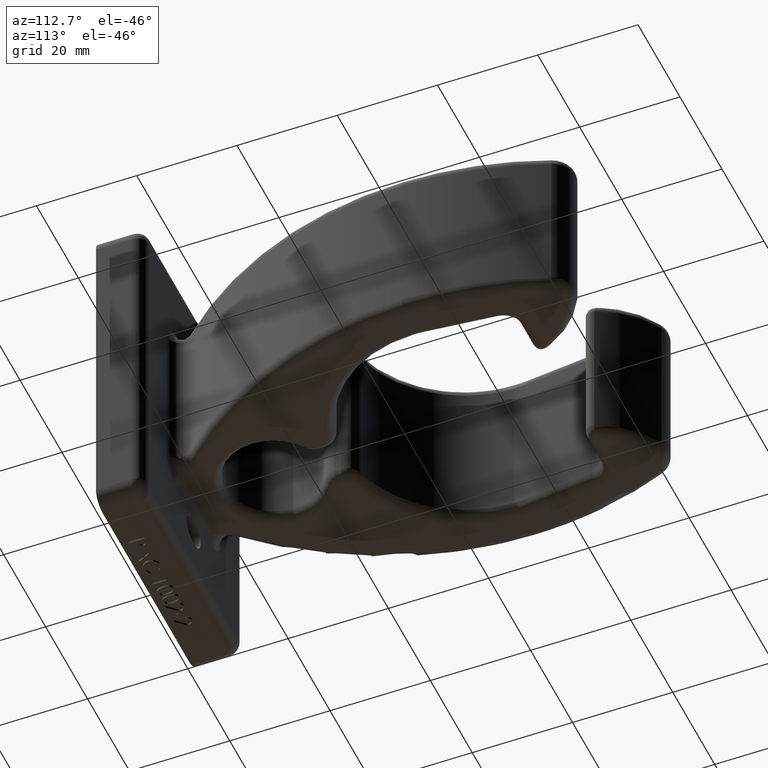
[diagram: clean part render]
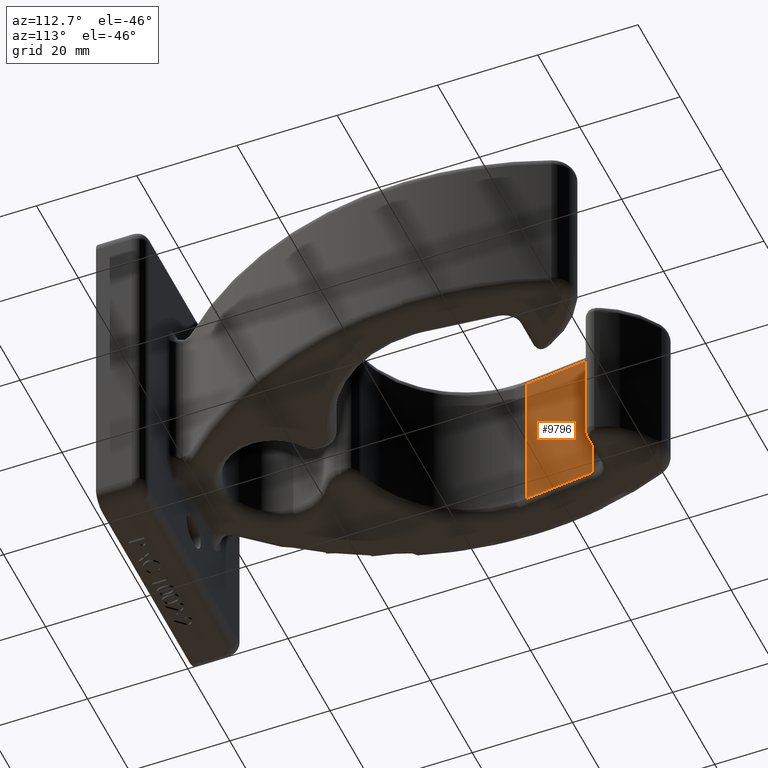
[diagram: same view with one face highlighted and labeled with its STEP entity id]
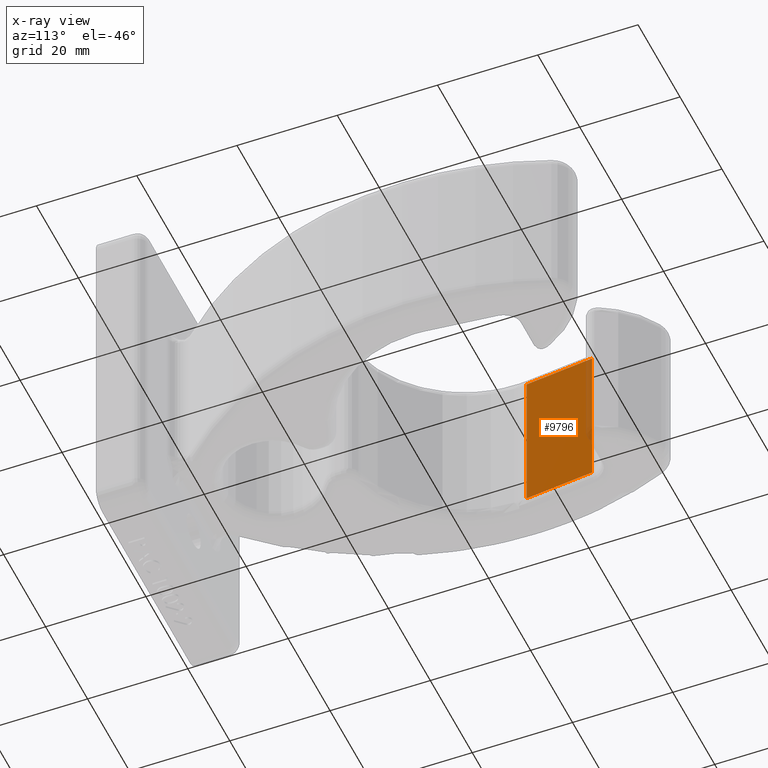
[diagram: x-ray of the same camera — body ghosted, the highlighted face saturated]
A machine part, auxiliary view. The second image highlights one B-rep face of the part: STEP entity #9796.
The next image is the same camera in x-ray: the body ghosted, the highlighted face saturated — about 6% of this face is hidden behind the body in this view.
In plain terms, the highlighted planar face has unit normal (-0.9943, 0.1069, 0).
Its self-contained STEP definition (entity closure, byte-faithful):
#18 = VERTEX_POINT ( 'NONE', #8032 ) ;
#294 = EDGE_CURVE ( 'NONE', #12819, #18, #11335, .T. ) ;
#824 = DIRECTION ( 'NONE',  ( -0.1068727522371608100, -0.9942727064690322100, 0.0000000000000000000 ) ) ;
#3010 = CARTESIAN_POINT ( 'NONE',  ( -0.8742840883086295800, 3.138359094029645300, 0.6875000000000000000 ) ) ;
#3126 = DIRECTION ( 'NONE',  ( -0.1068727522371608100, -0.9942727064690322100, -0.0000000000000000000 ) ) ;
#4051 = AXIS2_PLACEMENT_3D ( 'NONE', #15898, #8365, #824 ) ;
#4254 = VECTOR ( 'NONE', #7344, 39.37007874015748900 ) ;
#5516 = ORIENTED_EDGE ( 'NONE', *, *, #16351, .T. ) ;
#5789 = ORIENTED_EDGE ( 'NONE', *, *, #11124, .T. ) ;
#5840 = PLANE ( 'NONE',  #4051 ) ;
#5996 = CARTESIAN_POINT ( 'NONE',  ( -0.9321306623147180800, 2.600193205222338200, 0.6875000000000000000 ) ) ;
#7344 = DIRECTION ( 'NONE',  ( 0.1068727522371608100, 0.9942727064690322100, 0.0000000000000000000 ) ) ;
#7651 = VERTEX_POINT ( 'NONE', #9323 ) ;
#8010 = LINE ( 'NONE', #14859, #4254 ) ;
#8032 = CARTESIAN_POINT ( 'NONE',  ( -0.9321306623147180800, 2.600193205222338200, 0.5937500000000000000 ) ) ;
#8365 = DIRECTION ( 'NONE',  ( -0.9942727064690323200, 0.1068727522371608200, 0.0000000000000000000 ) ) ;
#9323 = CARTESIAN_POINT ( 'NONE',  ( -0.9321306623147180800, 2.600193205222338200, -0.5937499999999998900 ) ) ;
#9796 = ADVANCED_FACE ( 'NONE', ( #12484 ), #5840, .F. ) ;
#10442 = ORIENTED_EDGE ( 'NONE', *, *, #294, .T. ) ;
#10805 = VERTEX_POINT ( 'NONE', #13822 ) ;
#11064 = LINE ( 'NONE', #3010, #14038 ) ;
#11124 = EDGE_CURVE ( 'NONE', #7651, #10805, #8010, .T. ) ;
#11335 = LINE ( 'NONE', #14101, #14318 ) ;
#11646 = LINE ( 'NONE', #5996, #12210 ) ;
#11761 = DIRECTION ( 'NONE',  ( -0.0000000000000000000, -0.0000000000000000000, -1.000000000000000000 ) ) ;
#12210 = VECTOR ( 'NONE', #14784, 39.37007874015748100 ) ;
#12484 = FACE_OUTER_BOUND ( 'NONE', #12633, .T. ) ;
#12633 = EDGE_LOOP ( 'NONE', ( #5516, #5789, #15593, #10442 ) ) ;
#12819 = VERTEX_POINT ( 'NONE', #13703 ) ;
#13703 = CARTESIAN_POINT ( 'NONE',  ( -0.8742840883086295800, 3.138359094029645300, 0.5937500000000000000 ) ) ;
#13822 = CARTESIAN_POINT ( 'NONE',  ( -0.8742840883086295800, 3.138359094029645300, -0.5937499999999998900 ) ) ;
#13886 = EDGE_CURVE ( 'NONE', #12819, #10805, #11064, .T. ) ;
#14038 = VECTOR ( 'NONE', #11761, 39.37007874015748100 ) ;
#14101 = CARTESIAN_POINT ( 'NONE',  ( -0.9321306623147180800, 2.600193205222338200, 0.5937500000000000000 ) ) ;
#14318 = VECTOR ( 'NONE', #3126, 39.37007874015748900 ) ;
#14784 = DIRECTION ( 'NONE',  ( -0.0000000000000000000, -0.0000000000000000000, -1.000000000000000000 ) ) ;
#14859 = CARTESIAN_POINT ( 'NONE',  ( -0.8742840883086295800, 3.138359094029645300, -0.5937499999999998900 ) ) ;
#15593 = ORIENTED_EDGE ( 'NONE', *, *, #13886, .F. ) ;
#15898 = CARTESIAN_POINT ( 'NONE',  ( -0.8742840883086295800, 3.138359094029645300, 0.6875000000000000000 ) ) ;
#16351 = EDGE_CURVE ( 'NONE', #18, #7651, #11646, .T. ) ;